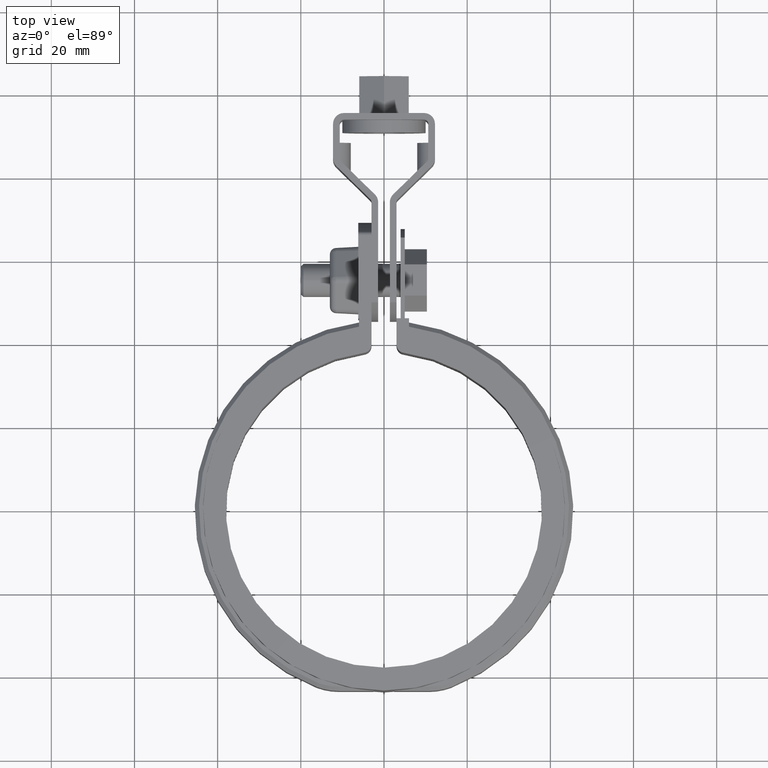
[diagram: clean part render]
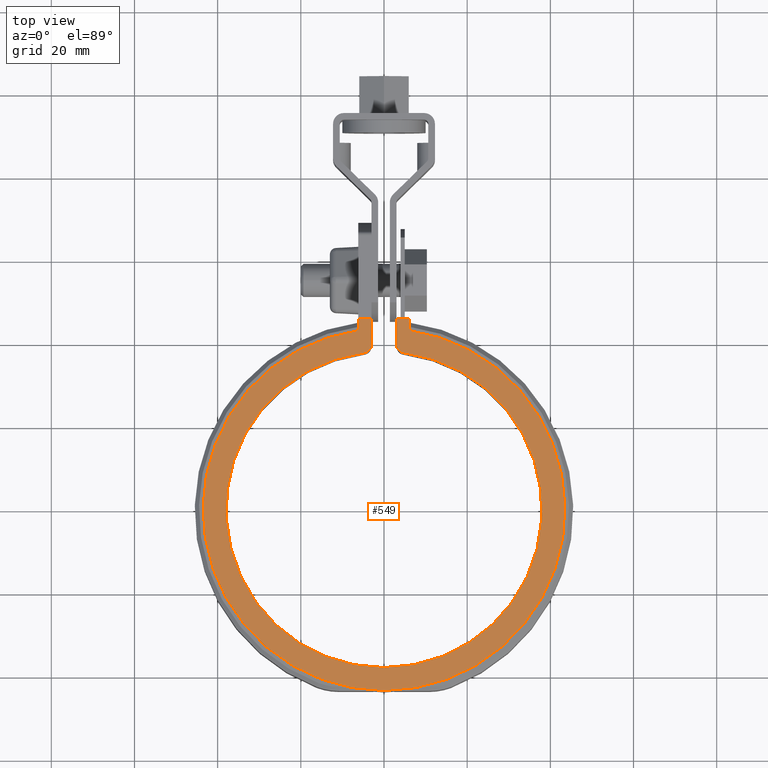
[diagram: same view with one face highlighted and labeled with its STEP entity id]
A machine part, top view. The second image highlights one B-rep face of the part: STEP entity #549.
In plain terms, the highlighted planar face has unit normal (0, 0, -1).
Its self-contained STEP definition (entity closure, byte-faithful):
#549 = ADVANCED_FACE( '', ( #1008 ), #1009, .F. );
#1008 = FACE_OUTER_BOUND( '', #2104, .T. );
#1009 = PLANE( '', #2105 );
#2104 = EDGE_LOOP( '', ( #4937, #4938, #4939, #4940, #4941, #4942, #4943, #4944, #4945, #4946 ) );
#2105 = AXIS2_PLACEMENT_3D( '', #4947, #4948, #4949 );
#4937 = ORIENTED_EDGE( '', *, *, #7529, .F. );
#4938 = ORIENTED_EDGE( '', *, *, #7616, .F. );
#4939 = ORIENTED_EDGE( '', *, *, #7617, .F. );
#4940 = ORIENTED_EDGE( '', *, *, #7618, .F. );
#4941 = ORIENTED_EDGE( '', *, *, #7619, .F. );
#4942 = ORIENTED_EDGE( '', *, *, #7620, .T. );
#4943 = ORIENTED_EDGE( '', *, *, #7621, .T. );
#4944 = ORIENTED_EDGE( '', *, *, #7622, .T. );
#4945 = ORIENTED_EDGE( '', *, *, #7517, .T. );
#4946 = ORIENTED_EDGE( '', *, *, #7623, .T. );
#4947 = CARTESIAN_POINT( '', ( 0.000000000000000, 0.000000000000000, 14.0000000000000 ) );
#4948 = DIRECTION( '', ( 0.000000000000000, 0.000000000000000, -1.00000000000000 ) );
#4949 = DIRECTION( '', ( 0.000000000000000, -1.00000000000000, 0.000000000000000 ) );
#7517 = EDGE_CURVE( '', #8699, #8697, #8700, .F. );
#7529 = EDGE_CURVE( '', #8718, #8720, #8721, .F. );
#7616 = EDGE_CURVE( '', #8868, #8718, #8869, .T. );
#7617 = EDGE_CURVE( '', #8870, #8868, #8871, .T. );
#7618 = EDGE_CURVE( '', #8872, #8870, #8873, .T. );
#7619 = EDGE_CURVE( '', #8874, #8872, #8875, .F. );
#7620 = EDGE_CURVE( '', #8874, #8876, #8877, .F. );
#7621 = EDGE_CURVE( '', #8876, #8878, #8879, .F. );
#7622 = EDGE_CURVE( '', #8878, #8699, #8880, .T. );
#7623 = EDGE_CURVE( '', #8697, #8720, #8881, .F. );
#8697 = VERTEX_POINT( '', #12079 );
#8699 = VERTEX_POINT( '', #12082 );
#8700 = CIRCLE( '', #12083, 2.00000000000000 );
#8718 = VERTEX_POINT( '', #12126 );
#8720 = VERTEX_POINT( '', #12129 );
#8721 = LINE( '', #12130, #12131 );
#8868 = VERTEX_POINT( '', #12603 );
#8869 = LINE( '', #12604, #12605 );
#8870 = VERTEX_POINT( '', #12606 );
#8871 = CIRCLE( '', #12607, 43.5000000000000 );
#8872 = VERTEX_POINT( '', #12608 );
#8873 = LINE( '', #12609, #12610 );
#8874 = VERTEX_POINT( '', #12611 );
#8875 = LINE( '', #12612, #12613 );
#8876 = VERTEX_POINT( '', #12614 );
#8877 = LINE( '', #12615, #12616 );
#8878 = VERTEX_POINT( '', #12617 );
#8879 = CIRCLE( '', #12618, 2.00000000000000 );
#8880 = CIRCLE( '', #12619, 38.0000000000000 );
#8881 = LINE( '', #12620, #12621 );
#12079 = CARTESIAN_POINT( '', ( -3.00000000000002, 39.6862696659689, 14.0000000000000 ) );
#12082 = CARTESIAN_POINT( '', ( -4.75000000000002, 37.7019561826704, 14.0000000000000 ) );
#12083 = AXIS2_PLACEMENT_3D( '', #14526, #14527, #14528 );
#12126 = CARTESIAN_POINT( '', ( -6.00000000000000, 46.0106449468841, 14.0000000000000 ) );
#12129 = CARTESIAN_POINT( '', ( -3.00000000000002, 46.0106449468841, 14.0000000000000 ) );
#12130 = CARTESIAN_POINT( '', ( 623.852591999588, 46.0106449468841, 14.0000000000000 ) );
#12131 = VECTOR( '', #14537, 1000.00000000000 );
#12603 = CARTESIAN_POINT( '', ( -6.00000000000000, 43.0842198490352, 14.0000000000000 ) );
#12604 = CARTESIAN_POINT( '', ( -6.00000000000000, 43.0842198490352, 14.0000000000000 ) );
#12605 = VECTOR( '', #14625, 1000.00000000000 );
#12606 = CARTESIAN_POINT( '', ( 6.00000000000000, 43.0842198490352, 14.0000000000000 ) );
#12607 = AXIS2_PLACEMENT_3D( '', #14626, #14627, #14628 );
#12608 = CARTESIAN_POINT( '', ( 6.00000000000000, 46.0106449468841, 14.0000000000000 ) );
#12609 = CARTESIAN_POINT( '', ( 6.00000000000000, 46.1500000000000, 14.0000000000000 ) );
#12610 = VECTOR( '', #14629, 1000.00000000000 );
#12611 = CARTESIAN_POINT( '', ( 3.00000000000000, 46.0106449468841, 14.0000000000000 ) );
#12612 = CARTESIAN_POINT( '', ( 623.852591999588, 46.0106449468841, 14.0000000000000 ) );
#12613 = VECTOR( '', #14630, 1000.00000000000 );
#12614 = CARTESIAN_POINT( '', ( 3.00000000000000, 39.6862696659689, 14.0000000000000 ) );
#12615 = CARTESIAN_POINT( '', ( 3.00000000000000, -1.82145964977564E-016, 14.0000000000000 ) );
#12616 = VECTOR( '', #14631, 1000.00000000000 );
#12617 = CARTESIAN_POINT( '', ( 4.75000000000000, 37.7019561826704, 14.0000000000000 ) );
#12618 = AXIS2_PLACEMENT_3D( '', #14632, #14633, #14634 );
#12619 = AXIS2_PLACEMENT_3D( '', #14635, #14636, #14637 );
#12620 = CARTESIAN_POINT( '', ( -3.00000000000002, 1.82145964977566E-016, 14.0000000000000 ) );
#12621 = VECTOR( '', #14638, 1000.00000000000 );
#14526 = CARTESIAN_POINT( '', ( -5.00000000000002, 39.6862696659689, 14.0000000000000 ) );
#14527 = DIRECTION( '', ( 0.000000000000000, 0.000000000000000, -1.00000000000000 ) );
#14528 = DIRECTION( '', ( -1.00000000000000, 0.000000000000000, 0.000000000000000 ) );
#14537 = DIRECTION( '', ( -1.00000000000000, 0.000000000000000, 0.000000000000000 ) );
#14625 = DIRECTION( '', ( 6.07153216591882E-017, 1.00000000000000, 0.000000000000000 ) );
#14626 = CARTESIAN_POINT( '', ( 0.000000000000000, 0.000000000000000, 14.0000000000000 ) );
#14627 = DIRECTION( '', ( 0.000000000000000, 0.000000000000000, -1.00000000000000 ) );
#14628 = DIRECTION( '', ( -1.00000000000000, 0.000000000000000, 0.000000000000000 ) );
#14629 = DIRECTION( '', ( -6.07153216591882E-017, -1.00000000000000, 0.000000000000000 ) );
#14630 = DIRECTION( '', ( -1.00000000000000, 0.000000000000000, 0.000000000000000 ) );
#14631 = DIRECTION( '', ( 6.07153216591882E-017, 1.00000000000000, 0.000000000000000 ) );
#14632 = CARTESIAN_POINT( '', ( 5.00000000000000, 39.6862696659689, 14.0000000000000 ) );
#14633 = DIRECTION( '', ( 0.000000000000000, 0.000000000000000, -1.00000000000000 ) );
#14634 = DIRECTION( '', ( -1.00000000000000, 0.000000000000000, 0.000000000000000 ) );
#14635 = CARTESIAN_POINT( '', ( 0.000000000000000, 0.000000000000000, 14.0000000000000 ) );
#14636 = DIRECTION( '', ( 0.000000000000000, 0.000000000000000, -1.00000000000000 ) );
#14637 = DIRECTION( '', ( -1.00000000000000, 0.000000000000000, 0.000000000000000 ) );
#14638 = DIRECTION( '', ( -6.07153216591882E-017, -1.00000000000000, 0.000000000000000 ) );